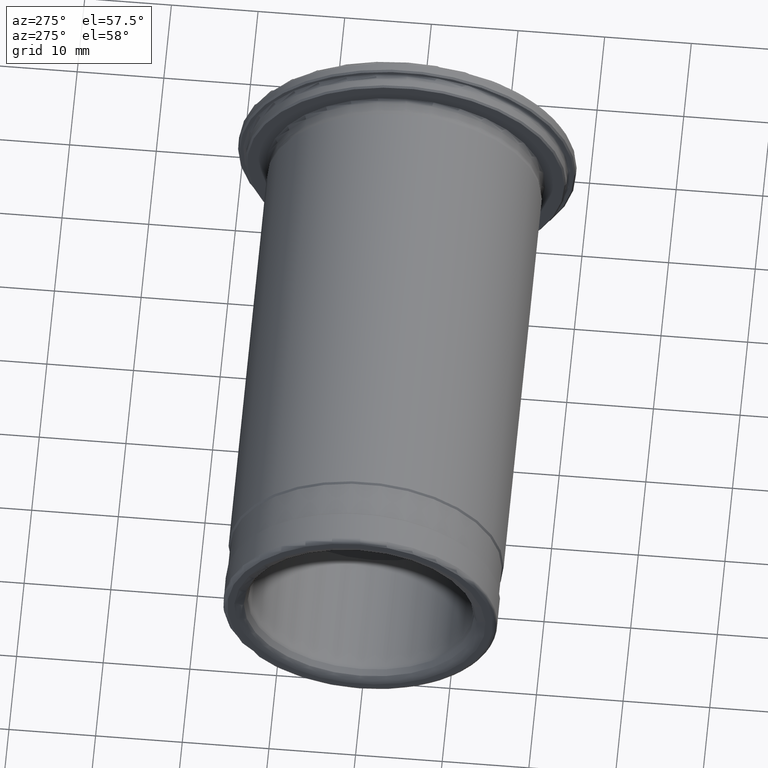
[diagram: clean part render]
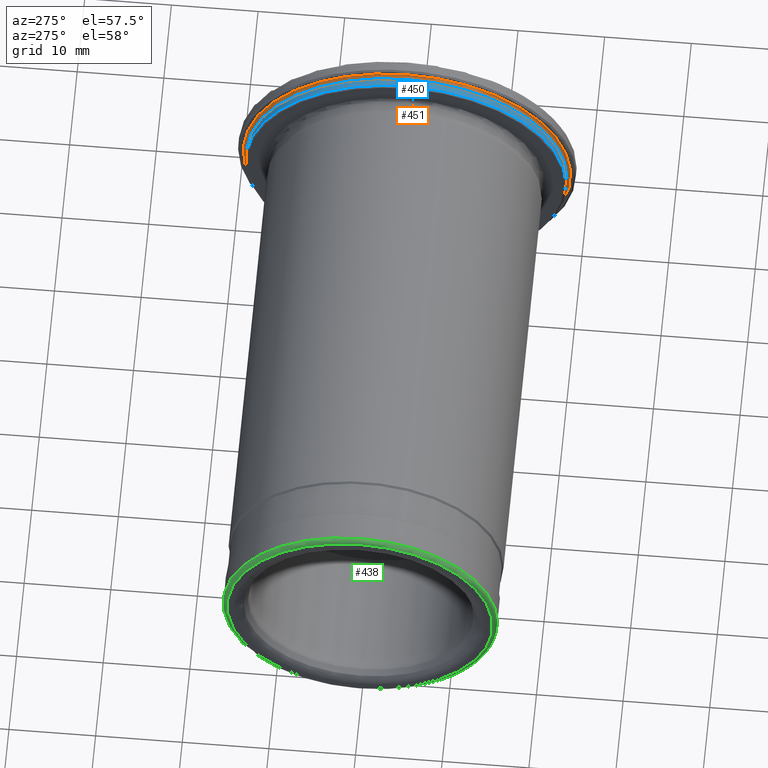
[diagram: same view with three faces highlighted in distinct colors, each labeled with its STEP entity id]
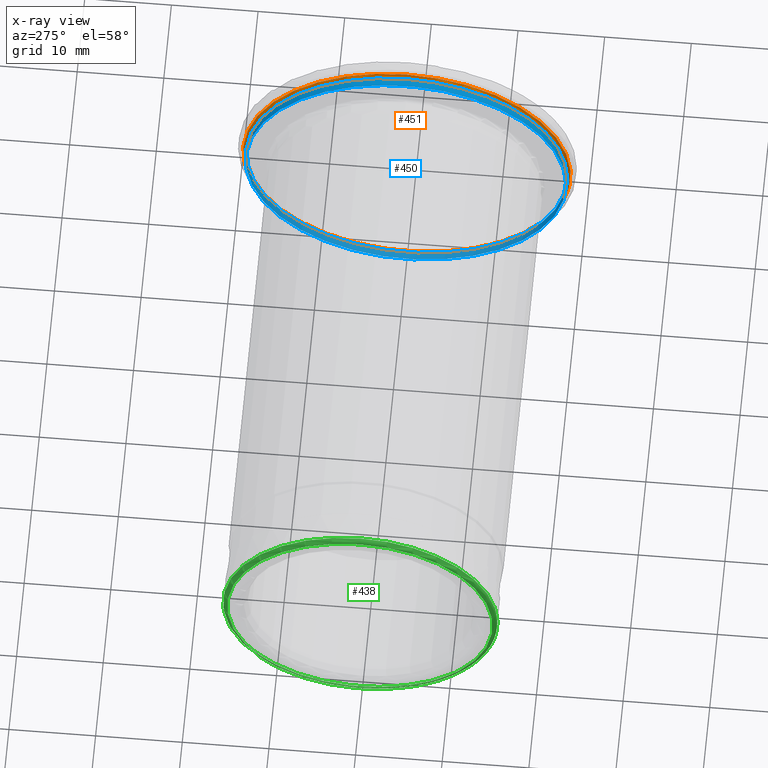
[diagram: x-ray of the same camera — body ghosted, the three highlighted faces saturated]
A machine part, auxiliary view with three faces highlighted in distinct colors.
The next image is the same camera in x-ray (body ghosted, the three faces saturated) — at least one of them is partly hidden behind the body in this view.
Their STEP definitions:

[orange] entity #451 — the highlighted toroidal blend (fillet) surface has major radius 18.9 mm and minor (blend) radius 0.4 mm.
#28=TOROIDAL_SURFACE('',#538,18.9000000000001,0.4);
#60=FACE_OUTER_BOUND('',#91,.T.);
#91=EDGE_LOOP('',(#383,#384,#385,#386,#387));
#167=CIRCLE('',#536,18.5);
#168=CIRCLE('',#537,18.5);
#169=CIRCLE('',#539,0.4);
#170=CIRCLE('',#540,18.9000000000001);
#212=VERTEX_POINT('',#832);
#213=VERTEX_POINT('',#833);
#214=VERTEX_POINT('',#838);
#270=EDGE_CURVE('',#212,#213,#167,.T.);
#272=EDGE_CURVE('',#213,#212,#168,.T.);
#273=EDGE_CURVE('',#213,#214,#169,.T.);
#274=EDGE_CURVE('',#214,#214,#170,.T.);
#383=ORIENTED_EDGE('',*,*,#270,.T.);
#384=ORIENTED_EDGE('',*,*,#273,.T.);
#385=ORIENTED_EDGE('',*,*,#274,.F.);
#386=ORIENTED_EDGE('',*,*,#273,.F.);
#387=ORIENTED_EDGE('',*,*,#272,.T.);
#451=ADVANCED_FACE('',(#60),#28,.F.);
#536=AXIS2_PLACEMENT_3D('',#834,#682,#683);
#537=AXIS2_PLACEMENT_3D('',#836,#685,#686);
#538=AXIS2_PLACEMENT_3D('',#837,#687,#688);
#539=AXIS2_PLACEMENT_3D('',#839,#689,#690);
#540=AXIS2_PLACEMENT_3D('',#840,#691,#692);
#682=DIRECTION('center_axis',(1.,0.,0.));
#683=DIRECTION('ref_axis',(0.,0.,-1.));
#685=DIRECTION('center_axis',(1.,0.,0.));
#686=DIRECTION('ref_axis',(0.,0.,-1.));
#687=DIRECTION('center_axis',(1.,0.,0.));
#688=DIRECTION('ref_axis',(0.,0.,-1.));
#689=DIRECTION('center_axis',(0.,-1.,-1.22464679914735E-16));
#690=DIRECTION('ref_axis',(0.,-1.22464679914735E-16,1.));
#691=DIRECTION('center_axis',(1.,0.,0.));
#692=DIRECTION('ref_axis',(0.,0.,-1.));
#832=CARTESIAN_POINT('',(-2.64339361228245,-18.5000000000005,-2.26559657842266E-15));
#833=CARTESIAN_POINT('',(-2.64339361228245,-2.26559657842261E-15,18.5));
#834=CARTESIAN_POINT('Origin',(-2.64339361228245,0.,0.));
#836=CARTESIAN_POINT('Origin',(-2.64339361228245,0.,0.));
#837=CARTESIAN_POINT('Origin',(-2.64339361228199,0.,0.));
#838=CARTESIAN_POINT('',(-2.24339361228199,-2.31458245038851E-15,18.9000000000001));
#839=CARTESIAN_POINT('Origin',(-2.64339361228199,-2.31458245038851E-15,
18.9000000000001));
#840=CARTESIAN_POINT('Origin',(-2.24339361228199,0.,0.));

[blue] entity #450 — the highlighted cylindrical surface (bore or boss wall) has radius 18.5 mm, axis along (1, 0, 0).
#59=FACE_OUTER_BOUND('',#90,.T.);
#90=EDGE_LOOP('',(#378,#379,#380,#381,#382));
#114=LINE('',#835,#130);
#130=VECTOR('',#684,18.5000000000005);
#166=CIRCLE('',#534,18.5000000000009);
#167=CIRCLE('',#536,18.5);
#168=CIRCLE('',#537,18.5);
#211=VERTEX_POINT('',#828);
#212=VERTEX_POINT('',#832);
#213=VERTEX_POINT('',#833);
#268=EDGE_CURVE('',#211,#211,#166,.T.);
#270=EDGE_CURVE('',#212,#213,#167,.T.);
#271=EDGE_CURVE('',#212,#211,#114,.T.);
#272=EDGE_CURVE('',#213,#212,#168,.T.);
#378=ORIENTED_EDGE('',*,*,#270,.F.);
#379=ORIENTED_EDGE('',*,*,#271,.T.);
#380=ORIENTED_EDGE('',*,*,#268,.T.);
#381=ORIENTED_EDGE('',*,*,#271,.F.);
#382=ORIENTED_EDGE('',*,*,#272,.F.);
#429=CYLINDRICAL_SURFACE('',#535,18.5000000000005);
#450=ADVANCED_FACE('',(#59),#429,.T.);
#534=AXIS2_PLACEMENT_3D('',#829,#677,#678);
#535=AXIS2_PLACEMENT_3D('',#831,#680,#681);
#536=AXIS2_PLACEMENT_3D('',#834,#682,#683);
#537=AXIS2_PLACEMENT_3D('',#836,#685,#686);
#677=DIRECTION('center_axis',(1.,0.,0.));
#678=DIRECTION('ref_axis',(0.,0.,-1.));
#680=DIRECTION('center_axis',(1.,0.,0.));
#681=DIRECTION('ref_axis',(0.,1.,0.));
#682=DIRECTION('center_axis',(1.,0.,0.));
#683=DIRECTION('ref_axis',(0.,0.,-1.));
#684=DIRECTION('',(-1.,0.,0.));
#685=DIRECTION('center_axis',(1.,0.,0.));
#686=DIRECTION('ref_axis',(0.,0.,-1.));
#828=CARTESIAN_POINT('',(-3.54339361228209,-18.5000000000009,-2.26559657842272E-15));
#829=CARTESIAN_POINT('Origin',(-3.54339361228209,0.,0.));
#831=CARTESIAN_POINT('Origin',(-3.09339361228227,0.,0.));
#832=CARTESIAN_POINT('',(-2.64339361228245,-18.5000000000005,-2.26559657842266E-15));
#833=CARTESIAN_POINT('',(-2.64339361228245,-2.26559657842261E-15,18.5));
#834=CARTESIAN_POINT('Origin',(-2.64339361228245,0.,0.));
#835=CARTESIAN_POINT('',(-3.09339361228227,-18.5000000000005,-2.26559657842266E-15));
#836=CARTESIAN_POINT('Origin',(-2.64339361228245,0.,0.));

[green] entity #438 — the highlighted toroidal blend (fillet) surface has major radius 15.325 mm and minor (blend) radius 0.5 mm.
#25=TOROIDAL_SURFACE('',#504,15.3250000000018,0.5);
#47=FACE_OUTER_BOUND('',#77,.T.);
#77=EDGE_LOOP('',(#324,#325,#326,#327,#328));
#147=CIRCLE('',#503,15.3250000000018);
#148=CIRCLE('',#505,15.8250000000018);
#149=CIRCLE('',#506,15.8250000000018);
#150=CIRCLE('',#507,0.5);
#195=VERTEX_POINT('',#774);
#196=VERTEX_POINT('',#777);
#197=VERTEX_POINT('',#778);
#242=EDGE_CURVE('',#195,#195,#147,.T.);
#243=EDGE_CURVE('',#196,#197,#148,.T.);
#244=EDGE_CURVE('',#197,#196,#149,.T.);
#245=EDGE_CURVE('',#197,#195,#150,.T.);
#324=ORIENTED_EDGE('',*,*,#243,.F.);
#325=ORIENTED_EDGE('',*,*,#244,.F.);
#326=ORIENTED_EDGE('',*,*,#245,.T.);
#327=ORIENTED_EDGE('',*,*,#242,.T.);
#328=ORIENTED_EDGE('',*,*,#245,.F.);
#438=ADVANCED_FACE('',(#47),#25,.T.);
#503=AXIS2_PLACEMENT_3D('',#775,#608,#609);
#504=AXIS2_PLACEMENT_3D('',#776,#610,#611);
#505=AXIS2_PLACEMENT_3D('',#779,#612,#613);
#506=AXIS2_PLACEMENT_3D('',#780,#614,#615);
#507=AXIS2_PLACEMENT_3D('',#781,#616,#617);
#608=DIRECTION('center_axis',(1.,0.,0.));
#609=DIRECTION('ref_axis',(0.,0.,-1.));
#610=DIRECTION('center_axis',(1.,0.,0.));
#611=DIRECTION('ref_axis',(0.,0.,-1.));
#612=DIRECTION('center_axis',(1.,0.,0.));
#613=DIRECTION('ref_axis',(0.,0.,-1.));
#614=DIRECTION('center_axis',(1.,0.,0.));
#615=DIRECTION('ref_axis',(0.,0.,-1.));
#616=DIRECTION('center_axis',(0.,-1.,-1.22464679914735E-16));
#617=DIRECTION('ref_axis',(0.,-1.22464679914735E-16,1.));
#774=CARTESIAN_POINT('',(-64.2433936122819,-1.87677121969354E-15,15.3250000000018));
#775=CARTESIAN_POINT('Origin',(-64.2433936122819,0.,0.));
#776=CARTESIAN_POINT('Origin',(-63.7433936122828,0.,0.));
#777=CARTESIAN_POINT('',(-63.7433936122828,-15.8250000000018,-1.9380035596509E-15));
#778=CARTESIAN_POINT('',(-63.7433936122828,-1.9380035596509E-15,15.8250000000018));
#779=CARTESIAN_POINT('Origin',(-63.7433936122828,0.,0.));
#780=CARTESIAN_POINT('Origin',(-63.7433936122828,0.,0.));
#781=CARTESIAN_POINT('Origin',(-63.7433936122828,-1.87677121969354E-15,
15.3250000000018));